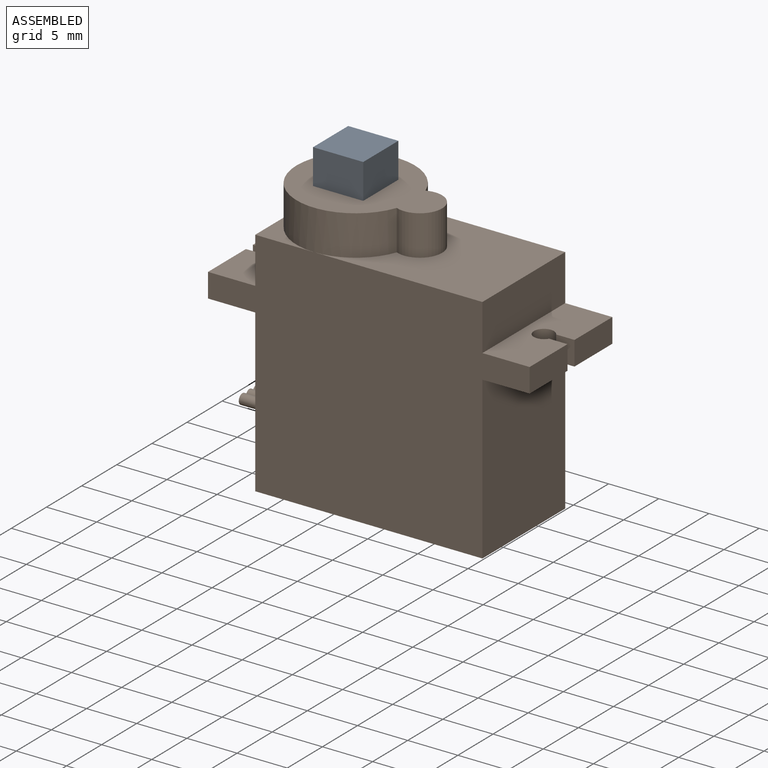
[diagram: assembled view]
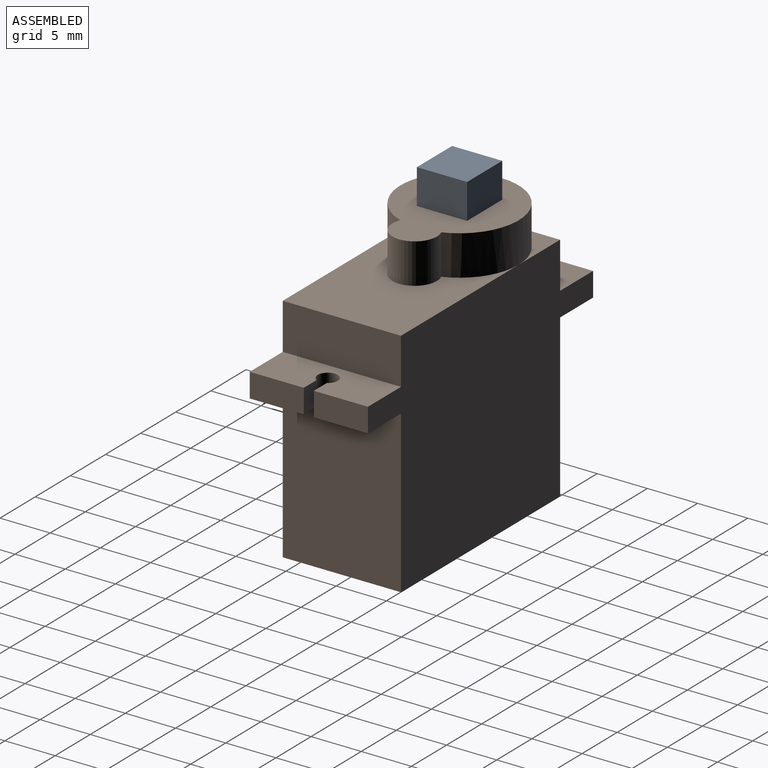
[diagram: assembled view, second angle]
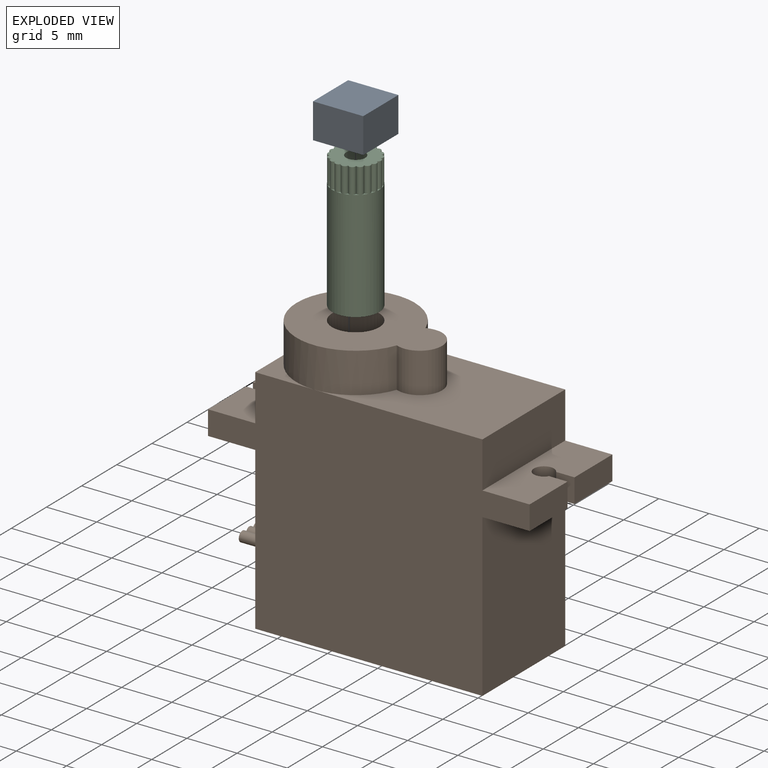
[diagram: exploded view]
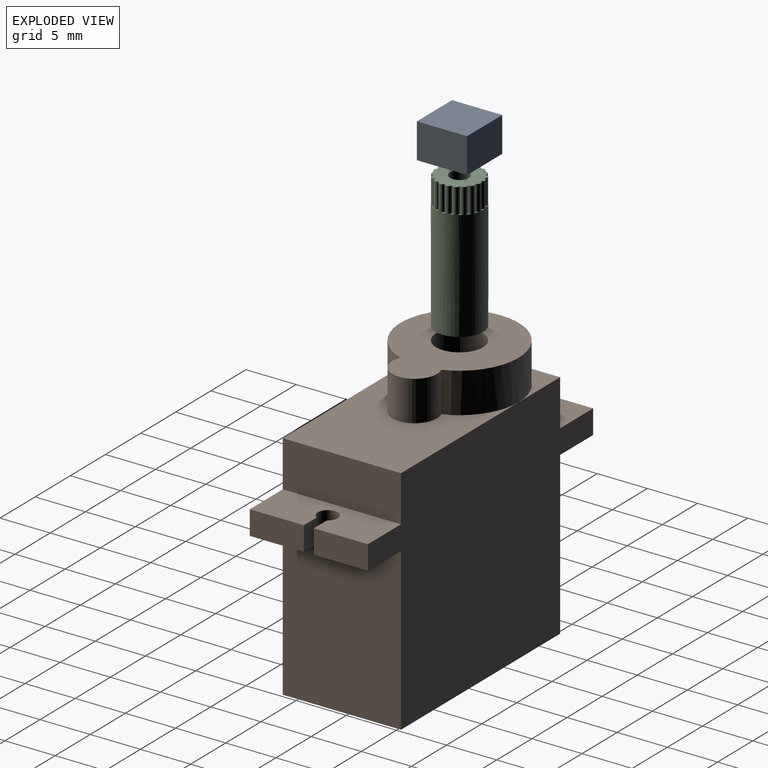
[diagram: exploded view, second angle]
ASSEMBLY  parts=3 mates=2
PART A: 27 faces, bbox 5x5x3.5 mm
  f0: plane 5x5mm, normal (0,0,-1), area 8.6mm2, adj f1,f2,f3,f4,f5,f6,f7,f8
  f1: cylinder r=0.33mm len=2.5mm, axis (0,0,1), area 2.3mm2, adj f0,f2,f20,f21
  f2: cylinder r=0.33mm len=2.5mm, axis (0,0,1), area 2.3mm2, adj f0,f1,f3,f21
  f3: cylinder r=0.33mm len=2.5mm, axis (0,0,1), area 2.3mm2, adj f0,f2,f4,f21
  f4: cylinder r=0.33mm len=2.5mm, axis (0,0,1), area 2.3mm2, adj f0,f3,f5,f21
  f5: cylinder r=0.33mm len=2.5mm, axis (0,0,1), area 2.3mm2, adj f0,f4,f6,f21
  f6: cylinder r=0.33mm len=2.5mm, axis (0,0,1), area 2.3mm2, adj f0,f5,f7,f21
  f7: cylinder r=0.33mm len=2.5mm, axis (0,0,1), area 2.3mm2, adj f0,f6,f8,f21
  f8: cylinder r=0.33mm len=2.5mm, axis (0,0,1), area 2.3mm2, adj f0,f7,f9,f21
  f9: cylinder r=0.33mm len=2.5mm, axis (0,0,1), area 2.3mm2, adj f0,f8,f10,f21
  f10: cylinder r=0.33mm len=2.5mm, axis (0,0,1), area 2.3mm2, adj f0,f9,f11,f21
  f11: cylinder r=0.33mm len=2.5mm, axis (0,0,1), area 2.3mm2, adj f0,f10,f12,f21
  f12: cylinder r=0.33mm len=2.5mm, axis (0,0,1), area 2.3mm2, adj f0,f11,f13,f21
  f13: cylinder r=0.33mm len=2.5mm, axis (0,0,1), area 2.3mm2, adj f0,f12,f14,f21
  f14: cylinder r=0.33mm len=2.5mm, axis (0,0,1), area 2.3mm2, adj f0,f13,f15,f21
  f15: cylinder r=0.33mm len=2.5mm, axis (0,0,1), area 2.3mm2, adj f0,f14,f16,f21
  f16: cylinder r=0.33mm len=2.5mm, axis (0,0,1), area 2.3mm2, adj f0,f15,f17,f21
  f17: cylinder r=0.33mm len=2.5mm, axis (0,0,1), area 2.3mm2, adj f0,f16,f18,f21
  f18: cylinder r=0.33mm len=2.5mm, axis (0,0,1), area 2.3mm2, adj f0,f17,f19,f21
  f19: cylinder r=0.33mm len=2.5mm, axis (0,0,1), area 2.3mm2, adj f0,f18,f20,f21
  f20: cylinder r=0.33mm len=2.5mm, axis (0,0,1), area 2.3mm2, adj f0,f1,f19,f21
  f21: plane 4.65x4.65mm, normal (0,0,-1), area 16.4mm2, adj f1,f2,f3,f4,f5,f6,f7,f8
  f22: plane 5x3.5mm, normal (0,1,0), area 17.5mm2, adj f0,f23,f25,f26
  f23: plane 5x3.5mm, normal (1,0,0), area 17.5mm2, adj f0,f22,f24,f26
  f24: plane 5x3.5mm, normal (0,-1,0), area 17.5mm2, adj f0,f23,f25,f26
  f25: plane 5x3.5mm, normal (-1,0,0), area 17.5mm2, adj f0,f22,f24,f26
  f26: plane 5x5mm, normal (0,0,1), area 25mm2, adj f22,f23,f24,f25
PART B: 36 faces, bbox 32x11.8x27.1 mm
  f0: plane 16.1x11.78mm, normal (-1,0,0), area 187.2mm2, adj f6,f8,f9,f28,f30,f31,f32,f33
  f1: plane 11.78x4.7mm, normal (0,0,-1), area 50.5mm2, adj f8,f9,f14,f15,f16,f17,f18,f26
  f2: cylinder r=5.89mm len=11.78mm, axis (0,0,-1), area 131.3mm2, adj f4,f5,f10,f12,f13
  f3: cylinder r=2.35mm len=11mm, axis (0,0,-1), area 162.4mm2, adj f5,f27
  f4: cylinder r=2.22mm len=4.44mm, axis (0,0,-1), area 35mm2, adj f2,f5,f10
  f5: plane 14.5x11.78mm, normal (0,0,1), area 102.1mm2, adj f2,f3,f4
  f6: plane 11.78x4.7mm, normal (0,0,-1), area 50.5mm2, adj f0,f8,f9,f20,f21,f22,f23,f24
  f7: plane 11.78x4.6mm, normal (1,0,0), area 54.2mm2, adj f8,f9,f10,f19
  f8: plane 32.04x23.1mm, normal (0,1,0), area 545.5mm2, adj f0,f1,f6,f7,f10,f11,f12,f18
  f9: plane 32.04x23.1mm, normal (0,-1,0), area 545.5mm2, adj f0,f1,f6,f7,f10,f11,f13,f14
  f10: plane 16.75x11.78mm, normal (0,0,1), area 132.3mm2, adj f2,f4,f7,f8,f9
  f11: plane 11.78x4.6mm, normal (-1,0,0), area 54.2mm2, adj f8,f9,f12,f13,f25
  f12: plane 5.89x5.89mm, normal (0,0,1), area 7.4mm2, adj f2,f8,f11
  f13: plane 5.89x5.89mm, normal (0,0,1), area 7.4mm2, adj f2,f9,f11
  f14: plane 5.39x2.4mm, normal (1,0,0), area 12.9mm2, adj f1,f9,f15,f19
  f15: plane 2.4x1.83mm, normal (0,1,0), area 4.4mm2, adj f1,f14,f16,f19
  f16: cylinder r=1mm len=2.4mm, axis (0,0,-1), area 12.6mm2, adj f1,f15,f17,f19
  f17: plane 2.4x1.83mm, normal (0,-1,0), area 4.4mm2, adj f1,f16,f18,f19
  f18: plane 5.39x2.4mm, normal (1,0,0), area 12.9mm2, adj f1,f8,f17,f19
  f19: plane 11.78x4.7mm, normal (0,0,1), area 50.5mm2, adj f7,f8,f9,f14,f15,f16,f17,f18
  f20: plane 5.39x2.4mm, normal (-1,0,0), area 12.9mm2, adj f6,f8,f21,f25
  f21: plane 2.4x1.83mm, normal (0,-1,0), area 4.4mm2, adj f6,f20,f22,f25
  f22: cylinder r=1mm len=2.4mm, axis (0,0,-1), area 12.6mm2, adj f6,f21,f23,f25
  f23: plane 2.4x1.83mm, normal (0,1,0), area 4.4mm2, adj f6,f22,f24,f25
  f24: plane 5.39x2.4mm, normal (-1,0,0), area 12.9mm2, adj f6,f9,f23,f25
  f25: plane 11.78x4.7mm, normal (0,0,1), area 50.5mm2, adj f8,f9,f11,f20,f21,f22,f23,f24
  f26: plane 16.1x11.78mm, normal (1,0,0), area 189.7mm2, adj f1,f8,f9,f28
  f27: plane 4.7x4.7mm, normal (0,0,1), area 14.5mm2, adj f3,f34
  f28: plane 22.64x11.78mm, normal (0,0,-1), area 266.7mm2, adj f0,f8,f9,f26
  f29: plane 3.03x1.03mm, normal (-1,0,0), area 2.5mm2, adj f30,f31,f32,f33
  f30: cylinder r=0.52mm len=4.7mm, axis (1,0,0), area 14mm2, adj f0,f29,f31,f33
  f31: cylinder r=0.52mm len=4.7mm, axis (1,0,0), area 6.4mm2, adj f0,f29,f30,f32
  f32: cylinder r=0.52mm len=4.7mm, axis (1,0,0), area 14mm2, adj f0,f29,f31,f33
  f33: cylinder r=0.52mm len=4.7mm, axis (1,0,0), area 6.4mm2, adj f0,f29,f30,f32
  f34: cylinder r=0.95mm len=7mm, axis (0,0,-1), area 41.8mm2, adj f27,f35
  f35: plane 1.9x1.9mm, normal (0,0,1), area 2.8mm2, adj f34
PART C: 44 faces, bbox 4.7x4.7x13.5 mm
  f0: plane 4.65x4.65mm, normal (0,0,1), area 13.5mm2, adj f2,f4,f5,f7,f8,f10,f11,f13
  f1: cylinder r=2.35mm len=11mm, axis (0,0,-1), area 162.4mm2, adj f3,f6,f9,f12,f15,f18,f21,f24
  f2: cylinder r=0.95mm len=13.5mm, axis (0,0,-1), area 80.6mm2, adj f0,f3
  f3: plane 4.7x4.7mm, normal (0,0,-1), area 14.5mm2, adj f1,f2
  f4: cylinder r=0.33mm len=2.5mm, axis (0,0,1), area 2.3mm2, adj f0,f5,f6,f7,f40
  f5: cylinder r=0.33mm len=2.5mm, axis (0,0,1), area 2.3mm2, adj f0,f4,f6,f31,f41
  f6: plane 0.74x0.25mm, normal (0,0,1), area 0mm2, adj f1,f4,f5
  f7: cylinder r=0.33mm len=2.5mm, axis (0,0,1), area 2.3mm2, adj f0,f4,f8,f9,f40
  f8: cylinder r=0.33mm len=2.5mm, axis (0,0,1), area 2.3mm2, adj f0,f7,f9,f28,f39
  f9: plane 0.6x0.43mm, normal (0,0,1), area 0mm2, adj f1,f7,f8
  f10: cylinder r=0.33mm len=2.5mm, axis (0,0,1), area 2.3mm2, adj f0,f11,f12,f32,f42
  f11: cylinder r=0.33mm len=2.5mm, axis (0,0,1), area 2.3mm2, adj f0,f10,f12,f13,f34
  f12: plane 0.7x0.32mm, normal (0,0,1), area 0mm2, adj f1,f10,f11
  f13: cylinder r=0.33mm len=2.5mm, axis (0,0,1), area 2.3mm2, adj f0,f11,f14,f15,f34
  f14: cylinder r=0.33mm len=2.5mm, axis (0,0,1), area 2.3mm2, adj f0,f13,f15,f16,f35
  f15: plane 0.7x0.32mm, normal (0,0,1), area 0mm2, adj f1,f13,f14
  f16: cylinder r=0.33mm len=2.5mm, axis (0,0,1), area 2.3mm2, adj f0,f14,f17,f18,f35
  f17: cylinder r=0.33mm len=2.5mm, axis (0,0,1), area 2.3mm2, adj f0,f16,f18,f20,f43
  f18: plane 0.6x0.43mm, normal (0,0,1), area 0mm2, adj f1,f16,f17
  f19: cylinder r=0.33mm len=2.5mm, axis (0,0,1), area 2.3mm2, adj f0,f20,f21,f23,f36
  f20: cylinder r=0.33mm len=2.5mm, axis (0,0,1), area 2.3mm2, adj f0,f17,f19,f21,f43
  f21: plane 0.74x0.25mm, normal (0,0,1), area 0mm2, adj f1,f19,f20
  f22: cylinder r=0.33mm len=2.5mm, axis (0,0,1), area 2.3mm2, adj f0,f23,f24,f26,f37
  f23: cylinder r=0.33mm len=2.5mm, axis (0,0,1), area 2.3mm2, adj f0,f19,f22,f24,f36
  f24: plane 0.6x0.43mm, normal (0,0,1), area 0mm2, adj f1,f22,f23
  f25: cylinder r=0.33mm len=2.5mm, axis (0,0,1), area 2.3mm2, adj f0,f26,f27,f29,f38
  f26: cylinder r=0.33mm len=2.5mm, axis (0,0,1), area 2.3mm2, adj f0,f22,f25,f27,f37
  f27: plane 0.7x0.32mm, normal (0,0,1), area 0mm2, adj f1,f25,f26
  f28: cylinder r=0.33mm len=2.5mm, axis (0,0,1), area 2.3mm2, adj f0,f8,f29,f30,f39
  f29: cylinder r=0.33mm len=2.5mm, axis (0,0,1), area 2.3mm2, adj f0,f25,f28,f30,f38
  f30: plane 0.7x0.32mm, normal (0,0,1), area 0mm2, adj f1,f28,f29
  f31: cylinder r=0.33mm len=2.5mm, axis (0,0,1), area 2.3mm2, adj f0,f5,f32,f33,f41
  f32: cylinder r=0.33mm len=2.5mm, axis (0,0,1), area 2.3mm2, adj f0,f10,f31,f33,f42
  f33: plane 0.6x0.43mm, normal (0,0,1), area 0mm2, adj f1,f31,f32
  f34: plane 0.74x0.25mm, normal (0,0,1), area 0mm2, adj f1,f11,f13
  f35: plane 0.6x0.43mm, normal (0,0,1), area 0mm2, adj f1,f14,f16
  f36: plane 0.7x0.32mm, normal (0,0,1), area 0mm2, adj f1,f19,f23
  f37: plane 0.6x0.43mm, normal (0,0,1), area 0mm2, adj f1,f22,f26
  f38: plane 0.74x0.25mm, normal (0,0,1), area 0mm2, adj f1,f25,f29
  f39: plane 0.6x0.43mm, normal (0,0,1), area 0mm2, adj f1,f8,f28
  f40: plane 0.7x0.32mm, normal (0,0,1), area 0mm2, adj f1,f4,f7
  f41: plane 0.7x0.32mm, normal (0,0,1), area 0mm2, adj f1,f5,f31
  f42: plane 0.6x0.43mm, normal (0,0,1), area 0mm2, adj f1,f10,f32
  f43: plane 0.7x0.32mm, normal (0,0,1), area 0mm2, adj f1,f17,f20
PLACE A t=(-0.4,0.21,6.29)mm
PLACE B t=(-0.4,0.21,6.29)mm
PLACE C t=(-0.4,0.21,6.29)mm
MATE revolute C.f1 <-> B.f34  axis (0,0,-1) through (-5.83,0.21,6.29)mm
MATE fastened A.f21 <-> C.f2  axis (0,0,-1) through (-5.83,0.21,19.79)mm
